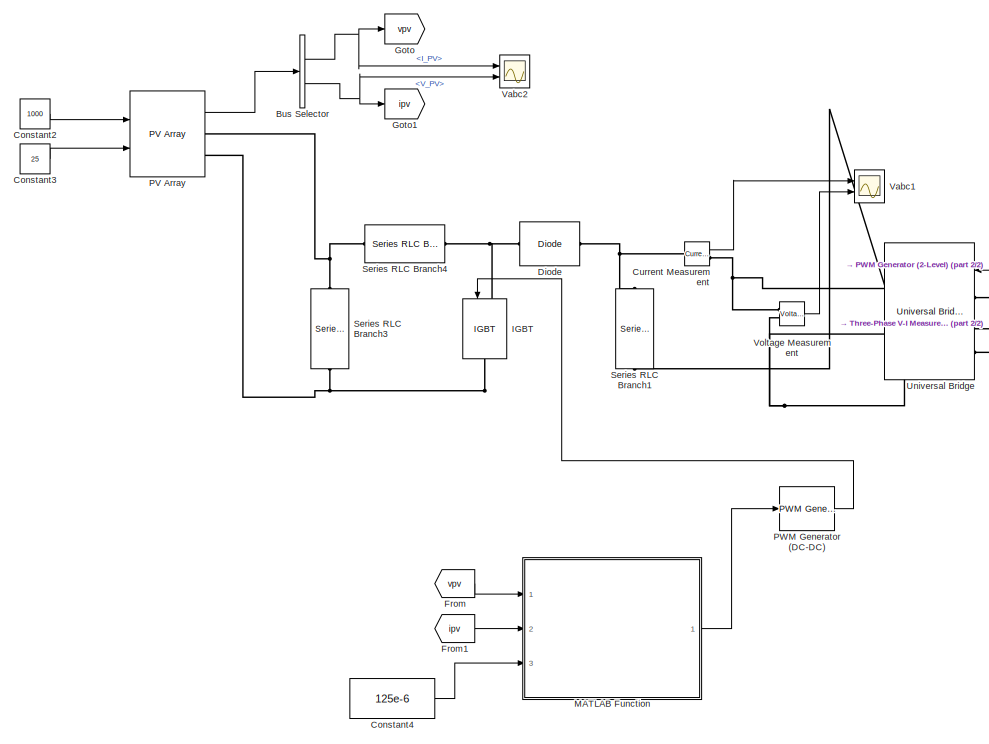
[diagram: root canvas - part 1/2, left side, full height]
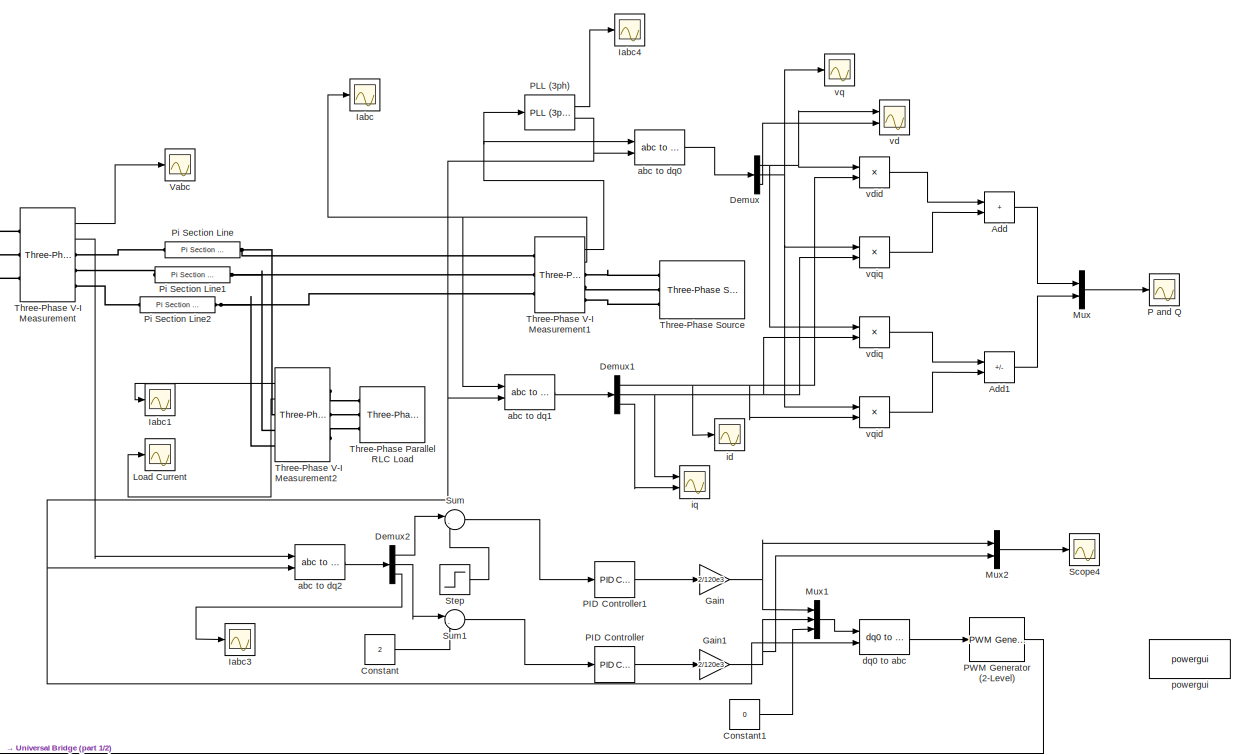
[diagram: root canvas - part 2/2, right side, full height]
MODEL slx_1ca7ae283d3b
KIND model
CONFIG AbsTol = auto
CONFIG EnableMultiTasking = off
CONFIG FixedStep = auto
CONFIG MaxStep = auto
CONFIG MinStep = auto
CONFIG RelTol = 1e-3
CONFIG SampleTimeConstraint = Unconstrained
CONFIG SolverName = VariableStepAuto
CONFIG StartTime = 0.0
CONFIG StopTime = 0.5
BLOCK [Sum] Add
  IconShape = rectangular
  Ports = [2, 1]
BLOCK [Sum] Add1
  IconShape = rectangular
  Inputs = -+
  Ports = [2, 1]
BLOCK [BusSelector] Bus Selector
  OutputSignals = I_PV,V_PV
  Ports = [1, 2]
BLOCK [Constant] Constant
  SampleTime = 1e-6
  Value = 2
BLOCK [Constant] Constant1
  SampleTime = 1e-6
  Value = 0
BLOCK [Constant] Constant2
  SampleTime = 1e-6
  Value = 1000
BLOCK [Constant] Constant3
  SampleTime = 1e-6
  Value = 25
BLOCK [Constant] Constant4
  SampleTime = 1e-6
  Value = 125e-6
BLOCK [Reference] Current Measurement  REF=spsCurrentMeasurementLib/Current Measurement
  Ports = [0, 1, 0, 0, 0, 1, 1]
  SourceBlock = spsCurrentMeasurementLib/Current Measurement
  SourceProductBaseCode = PS
  SourceType = Current Measurement
  UserDataPersistent = on
BLOCK [Demux] Demux
  Outputs = 3
  Ports = [1, 3]
BLOCK [Demux] Demux1
  Outputs = 3
  Ports = [1, 3]
BLOCK [Demux] Demux2
  Outputs = 3
  Ports = [1, 3]
BLOCK [Reference] Diode  REF=spsDiodeLib/Diode
  Ports = [0, 0, 0, 0, 0, 1, 1]
  SourceBlock = spsDiodeLib/Diode
  SourceProductBaseCode = PS
  SourceType = Diode
BLOCK [From] From
  GotoTag = vpv
BLOCK [From] From1
  GotoTag = ipv
BLOCK [Gain] Gain
  Gain = 2/120e3
BLOCK [Gain] Gain1
  Gain = 2/120e3
BLOCK [Goto] Goto
  GotoTag = vpv
BLOCK [Goto] Goto1
  GotoTag = ipv
BLOCK [Reference] IGBT  REF=spsIGBTLib/IGBT
  NameLocation = left
  Ports = [1, 0, 0, 0, 0, 1, 1]
  SourceBlock = spsIGBTLib/IGBT
  SourceProductBaseCode = PS
  SourceType = IGBT
BLOCK [Scope] Iabc
  Floating = off
  NumInputPorts = 1
  Ports = [1]
  ScopeSpecificationString = Simulink.scopes.TimeScopeBlockCfg('CurrentConfiguration', extmgr.ConfigurationSet(extmgr.Configuration('Core','General UI',true),extmgr.Configuration('Core','Source UI',true),extmgr.Configuration('Sources','WiredSimulink',true),extmgr.Configuration('Visuals','Time Domain',true,'SerializedDisplays',{struct('MinYLimReal','-7336.78724','MaxYLimReal','7029.96472','YLabelReal','','MinYLimMag','  0.0000...<+1536ch>
BLOCK [Scope] Iabc1
  Floating = off
  NumInputPorts = 1
  Ports = [1]
  ScopeSpecificationString = Simulink.scopes.TimeScopeBlockCfg('CurrentConfiguration', extmgr.ConfigurationSet(extmgr.Configuration('Core','General UI',true),extmgr.Configuration('Core','Source UI',true),extmgr.Configuration('Sources','WiredSimulink',true,'DataLoggingVariableName','ScopeData2'),extmgr.Configuration('Visuals','Time Domain',true,'SerializedDisplays',{struct('MinYLimReal','-268.00178','MaxYLimReal','276.80051','...<+1567ch>
BLOCK [Scope] Iabc3
  Floating = off
  NumInputPorts = 1
  Ports = [1]
  ScopeSpecificationString = Simulink.scopes.TimeScopeBlockCfg('CurrentConfiguration', extmgr.ConfigurationSet(extmgr.Configuration('Core','General UI',true),extmgr.Configuration('Core','Source UI',true),extmgr.Configuration('Sources','WiredSimulink',true,'DataLoggingVariableName','ScopeData4'),extmgr.Configuration('Visuals','Time Domain',true,'SerializedDisplays',{struct('MinYLimReal','-268.00178','MaxYLimReal','276.80051','...<+1567ch>
BLOCK [Scope] Iabc4
  Floating = off
  NumInputPorts = 1
  Ports = [1]
  ScopeSpecificationString = Simulink.scopes.TimeScopeBlockCfg('CurrentConfiguration', extmgr.ConfigurationSet(extmgr.Configuration('Core','General UI',true),extmgr.Configuration('Core','Source UI',true),extmgr.Configuration('Sources','WiredSimulink',true,'DataLoggingVariableName','ScopeData5'),extmgr.Configuration('Visuals','Time Domain',true,'SerializedDisplays',{struct('MinYLimReal','-268.00178','MaxYLimReal','276.80051','...<+1567ch>
BLOCK [Scope] Load Current
  Floating = off
  NumInputPorts = 1
  Ports = [1]
  ScopeSpecificationString = Simulink.scopes.TimeScopeBlockCfg('CurrentConfiguration', extmgr.ConfigurationSet(extmgr.Configuration('Core','General UI',true),extmgr.Configuration('Core','Source UI',true),extmgr.Configuration('Sources','WiredSimulink',true,'DataLoggingVariableName','ScopeData3','DataLogging',true),extmgr.Configuration('Visuals','Time Domain',true,'SerializedDisplays',{struct('MinYLimReal','-5774.00011','MaxYLi...<+1598ch>
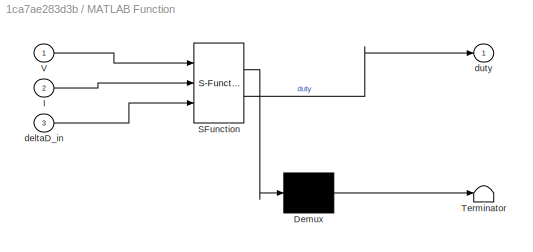
BLOCK [SubSystem] MATLAB Function
  ErrorFcn = Stateflow.Translate.translate
  PermitHierarchicalResolution = ExplicitOnly
  Ports = [3, 1]
  RequestExecContextInheritance = off
  SFBlockType = MATLAB Function
  TreatAsAtomicUnit = on
BLOCK [Demux] MATLAB Function/ Demux 
  Outputs = 1
  Ports = [1, 1]
BLOCK [S-Function] MATLAB Function/ SFunction 
  EnableBusSupport = on
  FunctionName = sf_sfun
  PortCounts = [3 2]
  Ports = [3, 2]
  SFcnIsStateOwnerBlock = off
  SFunctionDeploymentMode = off
  Tag = Stateflow S-Function 2
BLOCK [Terminator] MATLAB Function/ Terminator 
BLOCK [Inport] MATLAB Function/I
  Port = 2
BLOCK [Inport] MATLAB Function/V
BLOCK [Inport] MATLAB Function/deltaD_in
  Port = 3
BLOCK [Outport] MATLAB Function/duty
BLOCK [Mux] Mux
  DisplayOption = bar
  Inputs = 2
  Ports = [2, 1]
BLOCK [Mux] Mux1
  DisplayOption = bar
  Inputs = 3
  Ports = [3, 1]
BLOCK [Mux] Mux2
  DisplayOption = bar
  Inputs = 2
  Ports = [2, 1]
BLOCK [Scope] P and Q
  Floating = off
  NumInputPorts = 1
  Ports = [1]
  ScopeSpecificationString = Simulink.scopes.TimeScopeBlockCfg('CurrentConfiguration', extmgr.ConfigurationSet(extmgr.Configuration('Core','General UI',true),extmgr.Configuration('Core','Source UI',true),extmgr.Configuration('Sources','WiredSimulink',true,'DataLoggingVariableName','ScopeData3'),extmgr.Configuration('Visuals','Time Domain',true,'SerializedDisplays',{struct('MinYLimReal','-189715198.18047','MaxYLimReal','-11668...<+1433ch>
BLOCK [Reference] PID Controller  REF=slpidlib/PID Controller
  Ports = [1, 1]
  SourceBlock = slpidlib/PID Controller
  SourceProductBaseCode = SL
  SourceType = PID 1dof
BLOCK [Reference] PID Controller1  REF=slpidlib/PID Controller
  Ports = [1, 1]
  SourceBlock = slpidlib/PID Controller
  SourceProductBaseCode = SL
  SourceType = PID 1dof
BLOCK [Reference] PLL (3ph)  REF=spsPLL3phLib/PLL
(3ph)
  Ports = [1, 2]
  SourceBlock = spsPLL3phLib/PLL\n(3ph)
  SourceProductBaseCode = PS
  SourceType = PLL (3ph)
BLOCK [Reference] PV Array  REF=spsPVArrayLib/PV Array
  Ports = [2, 1, 0, 0, 0, 0, 2]
  SourceBlock = spsPVArrayLib/PV Array
  SourceProductBaseCode = PS
  SourceType = PV array
BLOCK [Reference] PWM Generator (2-Level)  REF=spsPWMGenerator2LevelLib/PWM Generator
(2-Level)
  Ports = [1, 1]
  SourceBlock = spsPWMGenerator2LevelLib/PWM Generator\n(2-Level)
  SourceProductBaseCode = PS
  SourceType = PWM Generator (2-Level)
BLOCK [Reference] PWM Generator (DC-DC)  REF=spsPWMGeneratorDCDCLib/PWM Generator
(DC-DC)
  Ports = [1, 1]
  SourceBlock = spsPWMGeneratorDCDCLib/PWM Generator\n(DC-DC)
  SourceProductBaseCode = PS
  SourceType = PWM Generator (DC-DC)
BLOCK [Reference] Pi Section Line  REF=spsPiSectionLineLib/Pi Section Line
  AttributesFormatString = \n
  Ports = [0, 0, 0, 0, 0, 1, 1]
  SourceBlock = spsPiSectionLineLib/Pi Section Line
  SourceProductBaseCode = PS
  SourceType = Pi Section Line
BLOCK [Reference] Pi Section Line1  REF=spsPiSectionLineLib/Pi Section Line
  AttributesFormatString = \n
  Ports = [0, 0, 0, 0, 0, 1, 1]
  SourceBlock = spsPiSectionLineLib/Pi Section Line
  SourceProductBaseCode = PS
  SourceType = Pi Section Line
BLOCK [Reference] Pi Section Line2  REF=spsPiSectionLineLib/Pi Section Line
  AttributesFormatString = \n
  Ports = [0, 0, 0, 0, 0, 1, 1]
  SourceBlock = spsPiSectionLineLib/Pi Section Line
  SourceProductBaseCode = PS
  SourceType = Pi Section Line
BLOCK [Scope] Scope4
  Floating = off
  NumInputPorts = 1
  Ports = [1]
  ScopeSpecificationString = Simulink.scopes.TimeScopeBlockCfg('CurrentConfiguration', extmgr.ConfigurationSet(extmgr.Configuration('Core','General UI',true),extmgr.Configuration('Core','Source UI',true),extmgr.Configuration('Sources','WiredSimulink',true,'DataLoggingVariableName','ScopeData5'),extmgr.Configuration('Visuals','Time Domain',true,'SerializedDisplays',{struct('MinYLimReal','-404.8166','MaxYLimReal','144.83261','Y...<+1485ch>
BLOCK [Reference] Series RLC Branch1  REF=spsSeriesRLCBranchLib/Series RLC Branch
  NameLocation = left
  Ports = [0, 0, 0, 0, 0, 1, 1]
  SourceBlock = spsSeriesRLCBranchLib/Series RLC Branch
  SourceProductBaseCode = PS
  SourceType = Series RLC Branch
BLOCK [Reference] Series RLC Branch3  REF=spsSeriesRLCBranchLib/Series RLC Branch
  NameLocation = left
  Ports = [0, 0, 0, 0, 0, 1, 1]
  SourceBlock = spsSeriesRLCBranchLib/Series RLC Branch
  SourceProductBaseCode = PS
  SourceType = Series RLC Branch
BLOCK [Reference] Series RLC Branch4  REF=spsSeriesRLCBranchLib/Series RLC Branch
  Ports = [0, 0, 0, 0, 0, 1, 1]
  SourceBlock = spsSeriesRLCBranchLib/Series RLC Branch
  SourceProductBaseCode = PS
  SourceType = Series RLC Branch
BLOCK [Step] Step
  After = 5
  Before = 10
  SampleTime = 1e-6
  Time = 0.25
BLOCK [Sum] Sum
  Inputs = |-+
  Ports = [2, 1]
BLOCK [Sum] Sum1
  Inputs = |-+
  Ports = [2, 1]
BLOCK [Reference] Three-Phase Parallel RLC Load  REF=spsThreePhaseParallelRLCLoadLib/Three-Phase
Parallel RLC Load
  AttributesFormatString = \n
  NameLocation = right
  Ports = [0, 0, 0, 0, 0, 3]
  SourceBlock = spsThreePhaseParallelRLCLoadLib/Three-Phase\nParallel RLC Load
  SourceProductBaseCode = PS
  SourceType = Three-Phase Parallel RLC Load
BLOCK [Reference] Three-Phase Source  REF=spsThreePhaseSourceLib/Three-Phase Source
  Ports = [0, 0, 0, 0, 0, 0, 3]
  SourceBlock = spsThreePhaseSourceLib/Three-Phase Source
  SourceProductBaseCode = PS
  SourceType = Three-Phase Source
BLOCK [Reference] Three-Phase V-I Measurement  REF=spsThreePhaseVIMeasurementLib/Three-Phase
V-I Measurement
  Ports = [0, 2, 0, 0, 0, 3, 3]
  SourceBlock = spsThreePhaseVIMeasurementLib/Three-Phase\nV-I Measurement
  SourceProductBaseCode = PS
  SourceType = Three-Phase VI Measurement
BLOCK [Reference] Three-Phase V-I Measurement1  REF=spsThreePhaseVIMeasurementLib/Three-Phase
V-I Measurement
  Ports = [0, 2, 0, 0, 0, 3, 3]
  SourceBlock = spsThreePhaseVIMeasurementLib/Three-Phase\nV-I Measurement
  SourceProductBaseCode = PS
  SourceType = Three-Phase VI Measurement
BLOCK [Reference] Three-Phase V-I Measurement2  REF=spsThreePhaseVIMeasurementLib/Three-Phase
V-I Measurement
  Ports = [0, 2, 0, 0, 0, 3, 3]
  SourceBlock = spsThreePhaseVIMeasurementLib/Three-Phase\nV-I Measurement
  SourceProductBaseCode = PS
  SourceType = Three-Phase VI Measurement
BLOCK [Reference] Universal Bridge  REF=spsUniversalBridgeLib/Universal Bridge
  Ports = [1, 0, 0, 0, 0, 3, 2]
  SourceBlock = spsUniversalBridgeLib/Universal Bridge
  SourceProductBaseCode = PS
  SourceType = Universal Bridge
BLOCK [Scope] Vabc
  Floating = off
  NumInputPorts = 1
  Ports = [1]
  ScopeSpecificationString = Simulink.scopes.TimeScopeBlockCfg('CurrentConfiguration', extmgr.ConfigurationSet(extmgr.Configuration('Core','General UI',true),extmgr.Configuration('Core','Source UI',true),extmgr.Configuration('Sources','WiredSimulink',true,'DataLoggingVariableName','ScopeData1'),extmgr.Configuration('Visuals','Time Domain',true,'SerializedDisplays',{struct('MinYLimReal','-95093.39558','MaxYLimReal','97201.3652...<+1584ch>
BLOCK [Scope] Vabc1
  Floating = off
  NumInputPorts = 2
  Ports = [2]
  ScopeSpecificationString = Simulink.scopes.TimeScopeBlockCfg('CurrentConfiguration', extmgr.ConfigurationSet(extmgr.Configuration('Core','General UI',true),extmgr.Configuration('Core','Source UI',true),extmgr.Configuration('Sources','WiredSimulink',true,'DataLoggingVariableName','ScopeData1'),extmgr.Configuration('Visuals','Time Domain',true,'SerializedDisplays',{struct('MinYLimReal','-95093.39558','MaxYLimReal','97201.3652...<+1584ch>
BLOCK [Scope] Vabc2
  Floating = off
  NumInputPorts = 2
  Ports = [2]
  ScopeSpecificationString = Simulink.scopes.TimeScopeBlockCfg('CurrentConfiguration', extmgr.ConfigurationSet(extmgr.Configuration('Core','General UI',true),extmgr.Configuration('Core','Source UI',true),extmgr.Configuration('Sources','WiredSimulink',true,'DataLoggingVariableName','ScopeData6'),extmgr.Configuration('Visuals','Time Domain',true,'SerializedDisplays',{struct('MinYLimReal','-520.86723','MaxYLimReal','822.23603','...<+1469ch>
BLOCK [Reference] Voltage Measurement  REF=spsVoltageMeasurementLib/Voltage Measurement
  Ports = [0, 1, 0, 0, 0, 2]
  SourceBlock = spsVoltageMeasurementLib/Voltage Measurement
  SourceProductBaseCode = PS
  SourceType = Voltage Measurement
  UserDataPersistent = on
BLOCK [Reference] abc to dq0  REF=spsabctodq0Lib/abc to dq0
  Ports = [2, 1]
  SourceBlock = spsabctodq0Lib/abc to dq0
  SourceProductBaseCode = PS
  SourceType = abc to dq0 Transformation
BLOCK [Reference] abc to dq1  REF=spsabctodq0Lib/abc to dq0
  Ports = [2, 1]
  SourceBlock = spsabctodq0Lib/abc to dq0
  SourceProductBaseCode = PS
  SourceType = abc to dq0 Transformation
BLOCK [Reference] abc to dq2  REF=spsabctodq0Lib/abc to dq0
  Ports = [2, 1]
  SourceBlock = spsabctodq0Lib/abc to dq0
  SourceProductBaseCode = PS
  SourceType = abc to dq0 Transformation
BLOCK [Reference] dq0 to abc  REF=spsdq0toabcLib/dq0 to abc
  Ports = [2, 1]
  SourceBlock = spsdq0toabcLib/dq0 to abc
  SourceProductBaseCode = PS
  SourceType = dq0 to abc Transformation
BLOCK [Scope] id
  Floating = off
  NumInputPorts = 1
  Ports = [1]
  ScopeSpecificationString = Simulink.scopes.TimeScopeBlockCfg('CurrentConfiguration', extmgr.ConfigurationSet(extmgr.Configuration('Core','General UI',true),extmgr.Configuration('Core','Source UI',true),extmgr.Configuration('Sources','WiredSimulink',true,'DataLoggingVariableName','ScopeData3'),extmgr.Configuration('Visuals','Time Domain',true,'SerializedDisplays',{struct('MinYLimReal','-222.55899','MaxYLimReal','-24.09293','...<+1381ch>
BLOCK [Scope] iq
  Floating = off
  NumInputPorts = 2
  Ports = [2]
  ScopeSpecificationString = Simulink.scopes.TimeScopeBlockCfg('CurrentConfiguration', extmgr.ConfigurationSet(extmgr.Configuration('Core','General UI',true),extmgr.Configuration('Core','Source UI',true),extmgr.Configuration('Sources','WiredSimulink',true,'DataLoggingVariableName','ScopeData2'),extmgr.Configuration('Visuals','Time Domain',true,'SerializedDisplays',{struct('MinYLimReal','32.6352','MaxYLimReal','241.85355','YLa...<+1373ch>
BLOCK [Reference] powergui  REF=spspowerguiLib/powergui
  Ports = []
  Priority = 1
  SourceBlock = spspowerguiLib/powergui
  SourceProductBaseCode = PS
  SourceType = PSB option menu block
BLOCK [Scope] vd
  Floating = off
  NumInputPorts = 2
  Ports = [2]
  ScopeSpecificationString = Simulink.scopes.TimeScopeBlockCfg('CurrentConfiguration', extmgr.ConfigurationSet(extmgr.Configuration('Core','General UI',true),extmgr.Configuration('Core','Source UI',true),extmgr.Configuration('Sources','WiredSimulink',true,'DataLoggingVariableName','ScopeData1'),extmgr.Configuration('Visuals','Time Domain',true,'SerializedDisplays',{struct('MinYLimReal','31738.31183','MaxYLimReal','69423.35523...<+1396ch>
BLOCK [Product] vdid
  Ports = [2, 1]
BLOCK [Product] vdiq
  Ports = [2, 1]
BLOCK [Scope] vq
  Floating = off
  NumInputPorts = 1
  Ports = [1]
  ScopeSpecificationString = Simulink.scopes.TimeScopeBlockCfg('CurrentConfiguration', extmgr.ConfigurationSet(extmgr.Configuration('Core','General UI',true),extmgr.Configuration('Core','Source UI',true),extmgr.Configuration('Sources','WiredSimulink',true,'DataLoggingVariableName','ScopeData1'),extmgr.Configuration('Visuals','Time Domain',true,'SerializedDisplays',{struct('MinYLimReal','-42849.12012','MaxYLimReal','4826.71204...<+1427ch>
BLOCK [Product] vqid
  Ports = [2, 1]
BLOCK [Product] vqiq
  Ports = [2, 1]
LINE Add1:1 -> Mux:2
LINE Add:1 -> Mux:1
NET Bus Selector:1 -> Goto:1, Vabc2:1
NET Bus Selector:2 -> Goto1:1, Vabc2:2
LINE Constant1:1 -> Mux1:3
LINE Constant2:1 -> PV Array:1
LINE Constant3:1 -> PV Array:2
LINE Constant4:1 -> MATLAB Function:3
LINE Constant:1 -> Sum1:2
LINE Current Measurement:1 -> Vabc1:1
NET Demux1:1 -> id:1, vdid:2, vqid:2
NET Demux1:2 -> iq:1, vdiq:2, vqiq:2
LINE Demux1:3 -> iq:2
LINE Demux2:1 -> Sum:1
LINE Demux2:2 -> Sum1:1
LINE Demux2:3 -> Iabc3:1
NET Demux:1 -> vd:1, vdid:1, vdiq:1
NET Demux:2 -> vq:1, vqid:1, vqiq:1
LINE Demux:3 -> vd:2
LINE From1:1 -> MATLAB Function:2
LINE From:1 -> MATLAB Function:1
NET Gain1:1 -> Mux1:2, Mux2:2
NET Gain:1 -> Mux1:1, Mux2:1
LINE MATLAB Function:1 -> PWM Generator (DC-DC):1
LINE Mux1:1 -> dq0 to abc:1
LINE Mux2:1 -> Scope4:1
LINE Mux:1 -> P and Q:1
LINE PID Controller1:1 -> Gain:1
LINE PID Controller:1 -> Gain1:1
LINE PLL (3ph):1 -> Iabc4:1
NET PLL (3ph):2 -> abc to dq0:2, abc to dq1:2, abc to dq2:2, dq0 to abc:2
LINE PV Array:1 -> Bus Selector:1
LINE PWM Generator (2-Level):1 -> Universal Bridge:1
LINE PWM Generator (DC-DC):1 -> IGBT:1
LINE Step:1 -> Sum:2
LINE Sum1:1 -> PID Controller:1
LINE Sum:1 -> PID Controller1:1
NET Three-Phase V-I Measurement1:1 -> PLL (3ph):1, abc to dq0:1
NET Three-Phase V-I Measurement1:2 -> Iabc:1, abc to dq1:1
LINE Three-Phase V-I Measurement2:1 -> Iabc1:1
LINE Three-Phase V-I Measurement2:2 -> Load Current:1
LINE Three-Phase V-I Measurement:1 -> Vabc:1
LINE Three-Phase V-I Measurement:2 -> abc to dq2:1
LINE Voltage Measurement:1 -> Vabc1:2
LINE abc to dq0:1 -> Demux:1
LINE abc to dq1:1 -> Demux1:1
LINE abc to dq2:1 -> Demux2:1
LINE dq0 to abc:1 -> PWM Generator (2-Level):1
LINE vdid:1 -> Add:1
LINE vdiq:1 -> Add1:1
LINE vqid:1 -> Add1:2
LINE vqiq:1 -> Add:2
PNET net1: Current Measurement:LConn1 -- Diode:RConn1 -- Series RLC Branch1:LConn1
PNET net2: Current Measurement:RConn1 -- Universal Bridge:RConn1 -- Voltage Measurement:LConn1
PNET net3: Diode:LConn1 -- IGBT:LConn1 -- Series RLC Branch4:RConn1
PNET net4: IGBT:RConn1 -- PV Array:RConn2 -- Series RLC Branch1:RConn1 -- Series RLC Branch3:RConn1 -- Universal Bridge:RConn2 -- Voltage Measurement:LConn2
PNET net5: PV Array:RConn1 -- Series RLC Branch3:LConn1 -- Series RLC Branch4:LConn1
PLINE Pi Section Line1:LConn1 -- Three-Phase V-I Measurement:RConn2
PNET net6: Pi Section Line1:RConn1 -- Three-Phase V-I Measurement1:LConn2 -- Three-Phase V-I Measurement2:RConn2
PLINE Pi Section Line2:LConn1 -- Three-Phase V-I Measurement:RConn3
PNET net7: Pi Section Line2:RConn1 -- Three-Phase V-I Measurement1:LConn3 -- Three-Phase V-I Measurement2:RConn3
PLINE Pi Section Line:LConn1 -- Three-Phase V-I Measurement:RConn1
PNET net8: Pi Section Line:RConn1 -- Three-Phase V-I Measurement1:LConn1 -- Three-Phase V-I Measurement2:RConn1
PLINE Three-Phase Parallel RLC Load:LConn1 -- Three-Phase V-I Measurement2:LConn1
PLINE Three-Phase Parallel RLC Load:LConn2 -- Three-Phase V-I Measurement2:LConn2
PLINE Three-Phase Parallel RLC Load:LConn3 -- Three-Phase V-I Measurement2:LConn3
PLINE Three-Phase Source:RConn1 -- Three-Phase V-I Measurement1:RConn1
PLINE Three-Phase Source:RConn2 -- Three-Phase V-I Measurement1:RConn2
PLINE Three-Phase Source:RConn3 -- Three-Phase V-I Measurement1:RConn3
PLINE Three-Phase V-I Measurement:LConn1 -- Universal Bridge:LConn1
PLINE Three-Phase V-I Measurement:LConn2 -- Universal Bridge:LConn2
PLINE Three-Phase V-I Measurement:LConn3 -- Universal Bridge:LConn3
note: NET lines group one-source signal fan-out (src -> all destinations, sorted); 1:1 wires keep LINE; PNET lines group multi-terminal physical nets as a canonical sorted terminal list (undirected conserving connections); 2-terminal nets keep the pairwise PLINE form
CHART MATLAB Function states=1 transitions=1
  STATE_LABEL 'eML_blk_kernel()'
  STATE_LABEL 'SCRIPT:\nfunction duty = MPPT_control(V, I, deltaD_in)\n\nduty_init = 0.05 ;\nduty_min = 0 ;\nduty_max = 0.75 ;\n\npersistent Vold Pold duty_old;\n\nif isempty(Vold)\n    Vold=0;\n    Pold=0;\n    duty_old=duty_init;\nend\nP = V*I;\ndV = V - Vold;\ndP = P - Pold;\nduty = duty_old ;\ndeltaD = deltaD_in ;\n\nif dP ~= 0\n    if dP < 0\n        if dV < 0\n            duty = duty_old - deltaD;\n        else\n            duty =...<+295ch>'
CHART  states=0 transitions=0
